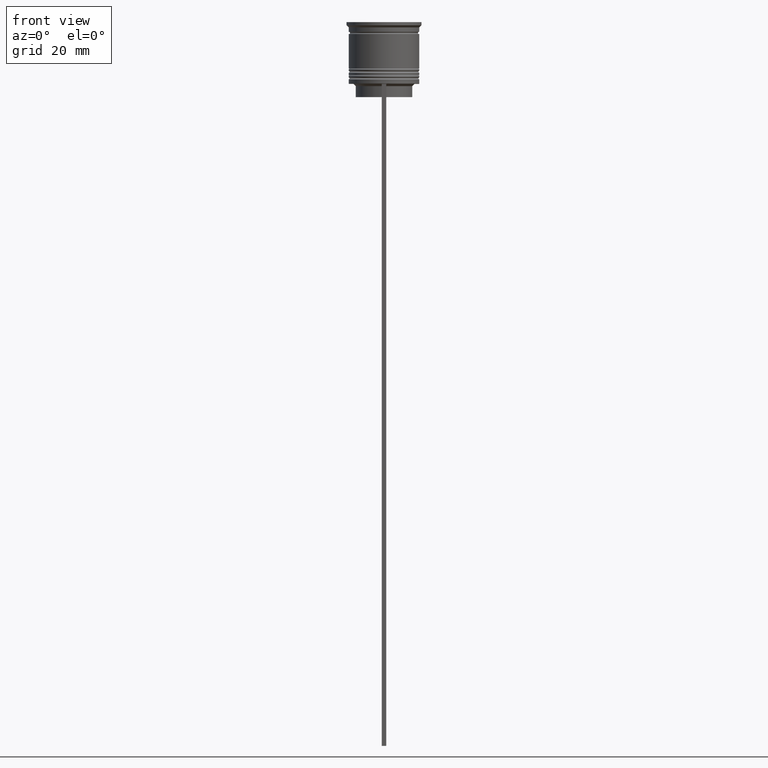
[diagram: clean part render]
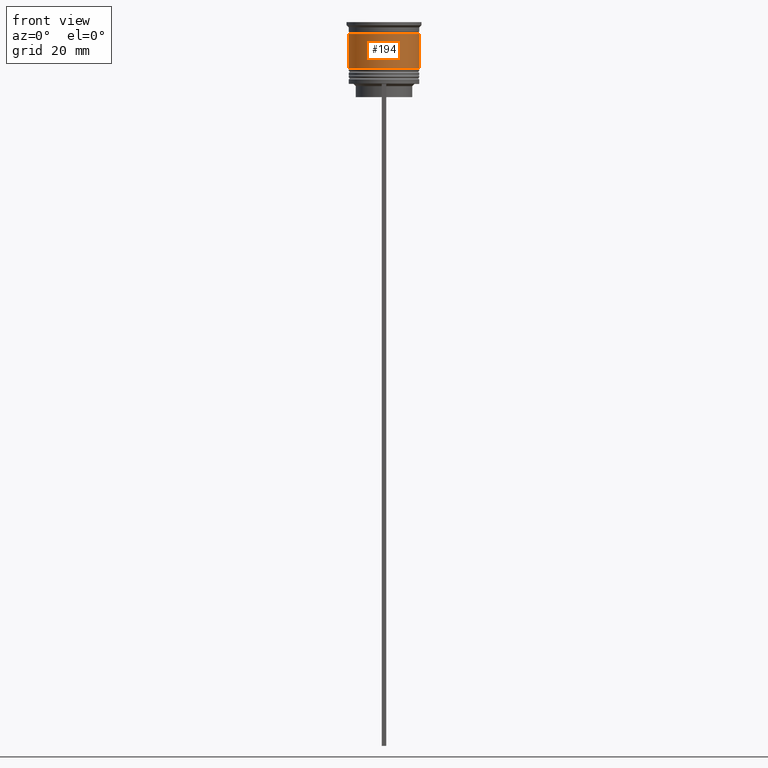
[diagram: same view with one face highlighted and labeled with its STEP entity id]
A machine part, front view. The second image highlights one B-rep face of the part: STEP entity #194.
In plain terms, the highlighted cylindrical surface (edge-blend (fillet) strip) has radius 8 mm, axis along (-0, -0, 1).
Its self-contained STEP definition (entity closure, byte-faithful):
#194 = ADVANCED_FACE ( 'NONE', ( #2338 ), #1397, .T. ) ;
#260 = VERTEX_POINT ( 'NONE', #1149 ) ;
#279 = VECTOR ( 'NONE', #445, 1000.000000000000000 ) ;
#445 = DIRECTION ( 'NONE',  ( -0.000000000000000000, -0.000000000000000000, 1.000000000000000000 ) ) ;
#582 = DIRECTION ( 'NONE',  ( 1.000000000000000000, 0.000000000000000000, 0.000000000000000000 ) ) ;
#657 = DIRECTION ( 'NONE',  ( 1.000000000000000000, 0.000000000000000000, 0.000000000000000000 ) ) ;
#701 = CARTESIAN_POINT ( 'NONE',  ( 0.000000000000000000, 0.000000000000000000, -10.50000000000000000 ) ) ;
#738 = LINE ( 'NONE', #1189, #279 ) ;
#765 = EDGE_CURVE ( 'NONE', #260, #869, #1158, .T. ) ;
#801 = AXIS2_PLACEMENT_3D ( 'NONE', #858, #867, #657 ) ;
#858 = CARTESIAN_POINT ( 'NONE',  ( 0.000000000000000000, 0.000000000000000000, 0.000000000000000000 ) ) ;
#867 = DIRECTION ( 'NONE',  ( -0.000000000000000000, -0.000000000000000000, 1.000000000000000000 ) ) ;
#869 = VERTEX_POINT ( 'NONE', #2157 ) ;
#877 = CARTESIAN_POINT ( 'NONE',  ( -8.000000000000001776, 9.797174393178827630E-16, -10.50000000000000000 ) ) ;
#1037 = AXIS2_PLACEMENT_3D ( 'NONE', #1132, #1726, #582 ) ;
#1095 = DIRECTION ( 'NONE',  ( -0.000000000000000000, -0.000000000000000000, 1.000000000000000000 ) ) ;
#1132 = CARTESIAN_POINT ( 'NONE',  ( 0.000000000000000000, 0.000000000000000000, -2.700000000000001510 ) ) ;
#1149 = CARTESIAN_POINT ( 'NONE',  ( -7.999999999999998224, 9.797174393178823685E-16, -2.700000000000001510 ) ) ;
#1158 = CIRCLE ( 'NONE', #1037, 7.999999999999998224 ) ;
#1179 = EDGE_LOOP ( 'NONE', ( #2306, #1437, #1372, #1751 ) ) ;
#1189 = CARTESIAN_POINT ( 'NONE',  ( -8.000000000000000000, 9.797174393178825657E-16, 0.000000000000000000 ) ) ;
#1212 = VERTEX_POINT ( 'NONE', #877 ) ;
#1305 = LINE ( 'NONE', #2432, #1497 ) ;
#1372 = ORIENTED_EDGE ( 'NONE', *, *, #1876, .T. ) ;
#1397 = CYLINDRICAL_SURFACE ( 'NONE', #801, 8.000000000000000000 ) ;
#1437 = ORIENTED_EDGE ( 'NONE', *, *, #1818, .T. ) ;
#1497 = VECTOR ( 'NONE', #2238, 1000.000000000000000 ) ;
#1511 = CARTESIAN_POINT ( 'NONE',  ( 8.000000000000001776, 0.000000000000000000, -10.50000000000000000 ) ) ;
#1726 = DIRECTION ( 'NONE',  ( -0.000000000000000000, -0.000000000000000000, 1.000000000000000000 ) ) ;
#1751 = ORIENTED_EDGE ( 'NONE', *, *, #765, .F. ) ;
#1789 = CIRCLE ( 'NONE', #2294, 8.000000000000001776 ) ;
#1818 = EDGE_CURVE ( 'NONE', #1212, #2357, #1789, .T. ) ;
#1876 = EDGE_CURVE ( 'NONE', #2357, #869, #1305, .T. ) ;
#2039 = DIRECTION ( 'NONE',  ( 1.000000000000000000, 0.000000000000000000, 0.000000000000000000 ) ) ;
#2157 = CARTESIAN_POINT ( 'NONE',  ( 7.999999999999998224, 0.000000000000000000, -2.700000000000001510 ) ) ;
#2238 = DIRECTION ( 'NONE',  ( -0.000000000000000000, -0.000000000000000000, 1.000000000000000000 ) ) ;
#2294 = AXIS2_PLACEMENT_3D ( 'NONE', #701, #1095, #2039 ) ;
#2306 = ORIENTED_EDGE ( 'NONE', *, *, #2481, .F. ) ;
#2338 = FACE_OUTER_BOUND ( 'NONE', #1179, .T. ) ;
#2357 = VERTEX_POINT ( 'NONE', #1511 ) ;
#2432 = CARTESIAN_POINT ( 'NONE',  ( 8.000000000000000000, 0.000000000000000000, 0.000000000000000000 ) ) ;
#2481 = EDGE_CURVE ( 'NONE', #1212, #260, #738, .T. ) ;